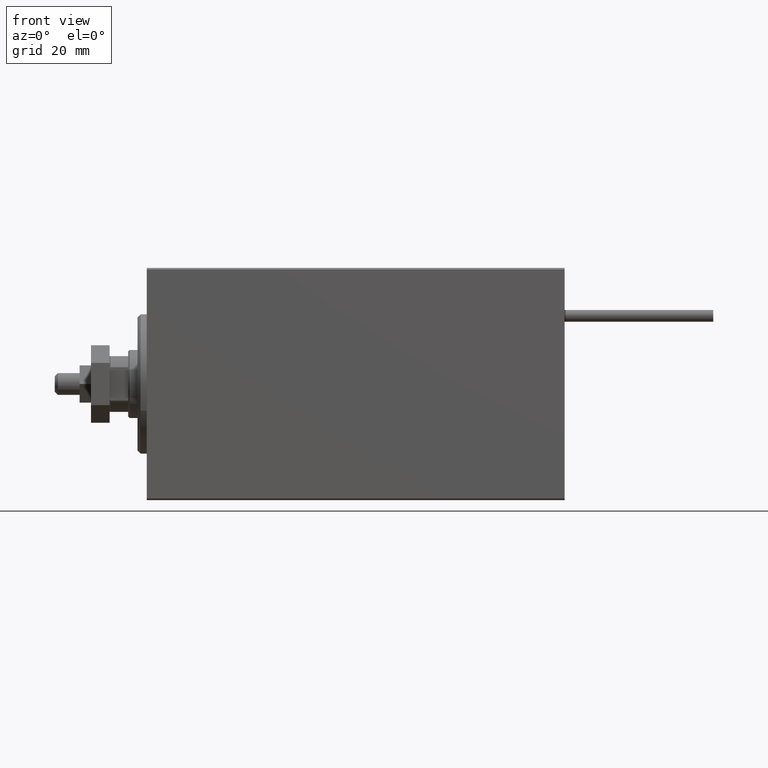
[diagram: clean part render]
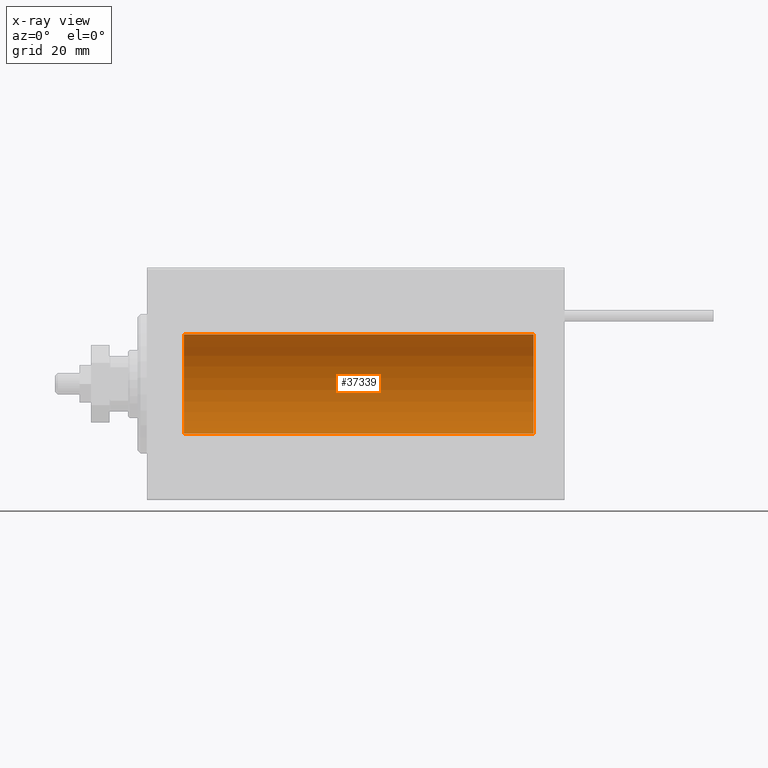
[diagram: x-ray — body ghosted, one internal face saturated and labeled with its STEP entity id]
A machine part, front view, then the same camera in x-ray: the body is ghosted and one INTERNAL B-rep face — a face not visible from any outside direction — is saturated and labeled: STEP entity #37339.
In plain terms, the highlighted cylindrical surface (partial cylindrical patch) has radius 16 mm, axis along (-1, -0, -0).
Its self-contained STEP definition (entity closure, byte-faithful):
#29 = ORIENTED_EDGE ( 'NONE', *, *, #391, .F. ) ;
#391 = EDGE_CURVE ( 'NONE', #1722, #20714, #25593, .T. ) ;
#1722 = VERTEX_POINT ( 'NONE', #9026 ) ;
#3799 = CARTESIAN_POINT ( 'NONE',  ( 125.0000000000000000, 0.000000000000000000, 16.00000000000000000 ) ) ;
#6001 = DIRECTION ( 'NONE',  ( 0.000000000000000000, 0.000000000000000000, 1.000000000000000000 ) ) ;
#7363 = EDGE_CURVE ( 'NONE', #26530, #20714, #26387, .T. ) ;
#9026 = CARTESIAN_POINT ( 'NONE',  ( 125.0000000000000000, 1.959434878635765131E-15, -16.00000000000000000 ) ) ;
#10344 = CYLINDRICAL_SURFACE ( 'NONE', #38057, 16.00000000000000000 ) ;
#10603 = FACE_OUTER_BOUND ( 'NONE', #41138, .T. ) ;
#10777 = EDGE_CURVE ( 'NONE', #46378, #1722, #17646, .T. ) ;
#11298 = CARTESIAN_POINT ( 'NONE',  ( 11.99999999999999645, 1.959434878635765131E-15, -16.00000000000000000 ) ) ;
#16987 = CARTESIAN_POINT ( 'NONE',  ( 11.99999999999999645, 0.000000000000000000, 16.00000000000000000 ) ) ;
#17139 = CARTESIAN_POINT ( 'NONE',  ( 11.99999999999999645, 0.000000000000000000, 0.000000000000000000 ) ) ;
#17646 = CIRCLE ( 'NONE', #45832, 16.00000000000000000 ) ;
#17767 = CARTESIAN_POINT ( 'NONE',  ( 125.0000000000000000, 1.959434878635765131E-15, -16.00000000000000000 ) ) ;
#17792 = LINE ( 'NONE', #25623, #23840 ) ;
#20714 = VERTEX_POINT ( 'NONE', #11298 ) ;
#21737 = DIRECTION ( 'NONE',  ( -1.000000000000000000, -0.000000000000000000, -0.000000000000000000 ) ) ;
#23840 = VECTOR ( 'NONE', #44534, 1000.000000000000000 ) ;
#23970 = AXIS2_PLACEMENT_3D ( 'NONE', #17139, #29752, #6001 ) ;
#24155 = ORIENTED_EDGE ( 'NONE', *, *, #49335, .T. ) ;
#25102 = DIRECTION ( 'NONE',  ( -1.000000000000000000, -0.000000000000000000, -0.000000000000000000 ) ) ;
#25593 = LINE ( 'NONE', #17767, #48010 ) ;
#25623 = CARTESIAN_POINT ( 'NONE',  ( 125.0000000000000000, 0.000000000000000000, 16.00000000000000000 ) ) ;
#26387 = CIRCLE ( 'NONE', #23970, 16.00000000000000000 ) ;
#26530 = VERTEX_POINT ( 'NONE', #16987 ) ;
#29481 = ORIENTED_EDGE ( 'NONE', *, *, #7363, .T. ) ;
#29752 = DIRECTION ( 'NONE',  ( -1.000000000000000000, 0.000000000000000000, 0.000000000000000000 ) ) ;
#33593 = CARTESIAN_POINT ( 'NONE',  ( 125.0000000000000000, 0.000000000000000000, 0.000000000000000000 ) ) ;
#33671 = ORIENTED_EDGE ( 'NONE', *, *, #10777, .F. ) ;
#37339 = ADVANCED_FACE ( 'NONE', ( #10603 ), #10344, .F. ) ;
#37823 = DIRECTION ( 'NONE',  ( 0.000000000000000000, 0.000000000000000000, 1.000000000000000000 ) ) ;
#38057 = AXIS2_PLACEMENT_3D ( 'NONE', #33593, #21737, #48213 ) ;
#41138 = EDGE_LOOP ( 'NONE', ( #29, #33671, #24155, #29481 ) ) ;
#44534 = DIRECTION ( 'NONE',  ( -1.000000000000000000, -0.000000000000000000, -0.000000000000000000 ) ) ;
#45832 = AXIS2_PLACEMENT_3D ( 'NONE', #48913, #46116, #37823 ) ;
#46116 = DIRECTION ( 'NONE',  ( -1.000000000000000000, 0.000000000000000000, 0.000000000000000000 ) ) ;
#46378 = VERTEX_POINT ( 'NONE', #3799 ) ;
#48010 = VECTOR ( 'NONE', #25102, 1000.000000000000000 ) ;
#48213 = DIRECTION ( 'NONE',  ( 0.000000000000000000, 0.000000000000000000, 1.000000000000000000 ) ) ;
#48913 = CARTESIAN_POINT ( 'NONE',  ( 125.0000000000000000, 0.000000000000000000, 0.000000000000000000 ) ) ;
#49335 = EDGE_CURVE ( 'NONE', #46378, #26530, #17792, .T. ) ;